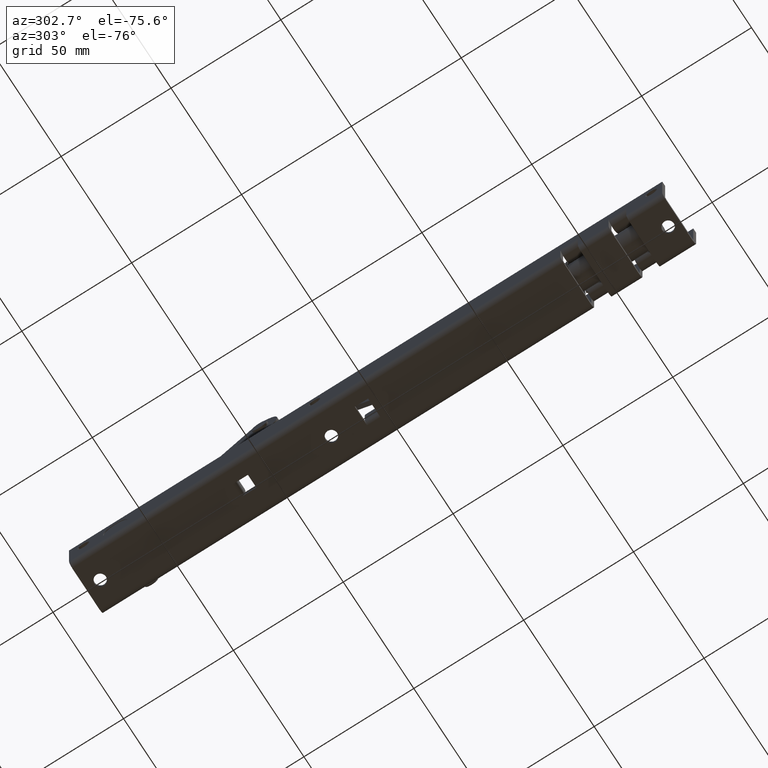
[diagram: clean part render]
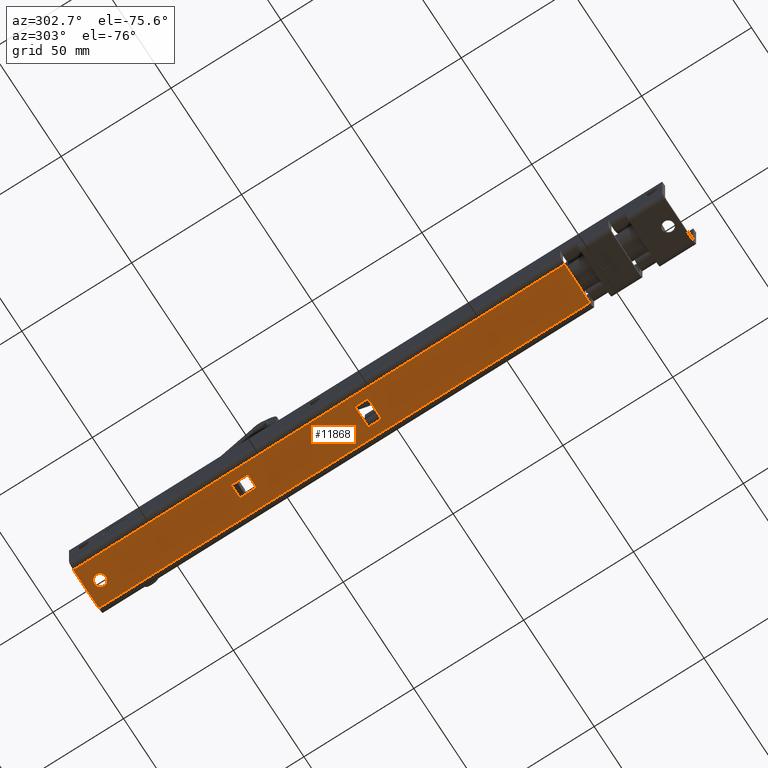
[diagram: same view with one face highlighted and labeled with its STEP entity id]
A machine part, auxiliary view. The second image highlights one B-rep face of the part: STEP entity #11868.
In plain terms, the highlighted planar face has unit normal (0, 0, 1).
Its self-contained STEP definition (entity closure, byte-faithful):
#73 = EDGE_CURVE ( 'NONE', #203, #7313, #15647, .T. ) ;
#203 = VERTEX_POINT ( 'NONE', #7095 ) ;
#212 = VERTEX_POINT ( 'NONE', #7611 ) ;
#945 = CARTESIAN_POINT ( 'NONE',  ( 9.000000000000001776, 135.0000000000000000, -19.99999999999999645 ) ) ;
#1148 = ORIENTED_EDGE ( 'NONE', *, *, #10926, .T. ) ;
#1369 = CARTESIAN_POINT ( 'NONE',  ( 2.000000000000000000, 9.400000000000000355, -19.99999999999999645 ) ) ;
#1674 = VERTEX_POINT ( 'NONE', #9254 ) ;
#1732 = ORIENTED_EDGE ( 'NONE', *, *, #20065, .F. ) ;
#1927 = AXIS2_PLACEMENT_3D ( 'NONE', #13660, #13734, #13590 ) ;
#2409 = VECTOR ( 'NONE', #5333, 1000.000000000000000 ) ;
#2617 = DIRECTION ( 'NONE',  ( -0.000000000000000000, 1.000000000000000000, -0.000000000000000000 ) ) ;
#2687 = CARTESIAN_POINT ( 'NONE',  ( 4.500000000000017764, 135.0000000000000000, -19.99999999999999645 ) ) ;
#2735 = CARTESIAN_POINT ( 'NONE',  ( 1.999999999999999112, 3.400000000000000355, -19.99999999999999645 ) ) ;
#3156 = DIRECTION ( 'NONE',  ( 0.000000000000000000, 0.000000000000000000, -1.000000000000000000 ) ) ;
#3235 = DIRECTION ( 'NONE',  ( -1.000000000000000000, 0.000000000000000000, 0.000000000000000000 ) ) ;
#3312 = LINE ( 'NONE', #14145, #18418 ) ;
#3920 = VECTOR ( 'NONE', #7854, 1000.000000000000000 ) ;
#4111 = LINE ( 'NONE', #9860, #10878 ) ;
#4131 = VECTOR ( 'NONE', #10114, 1000.000000000000000 ) ;
#4567 = VERTEX_POINT ( 'NONE', #945 ) ;
#4871 = VERTEX_POINT ( 'NONE', #11487 ) ;
#4877 = LINE ( 'NONE', #12262, #18102 ) ;
#5333 = DIRECTION ( 'NONE',  ( 1.445602896647339163E-16, 1.000000000000000000, -0.000000000000000000 ) ) ;
#5380 = CARTESIAN_POINT ( 'NONE',  ( -9.000000000000005329, 135.0000000000000000, -19.99999999999999645 ) ) ;
#5398 = ORIENTED_EDGE ( 'NONE', *, *, #73, .F. ) ;
#5687 = EDGE_CURVE ( 'NONE', #11872, #10839, #16625, .T. ) ;
#6009 = DIRECTION ( 'NONE',  ( -1.000000000000000000, 0.000000000000000000, 0.000000000000000000 ) ) ;
#6026 = CIRCLE ( 'NONE', #7589, 2.599999999999997424 ) ;
#6032 = FACE_BOUND ( 'NONE', #15145, .T. ) ;
#6102 = LINE ( 'NONE', #10458, #19285 ) ;
#6178 = EDGE_CURVE ( 'NONE', #10447, #4871, #15539, .T. ) ;
#6254 = AXIS2_PLACEMENT_3D ( 'NONE', #16362, #20293, #21551 ) ;
#6635 = LINE ( 'NONE', #21832, #3920 ) ;
#6787 = EDGE_CURVE ( 'NONE', #212, #14590, #10142, .T. ) ;
#7095 = CARTESIAN_POINT ( 'NONE',  ( -5.000000000000000888, 3.400000000000000355, -19.99999999999999645 ) ) ;
#7117 = ORIENTED_EDGE ( 'NONE', *, *, #7440, .T. ) ;
#7163 = LINE ( 'NONE', #2735, #16322 ) ;
#7234 = EDGE_CURVE ( 'NONE', #4567, #9451, #4877, .T. ) ;
#7313 = VERTEX_POINT ( 'NONE', #16278 ) ;
#7390 = FACE_BOUND ( 'NONE', #14608, .T. ) ;
#7440 = EDGE_CURVE ( 'NONE', #4567, #17064, #6635, .T. ) ;
#7566 = EDGE_LOOP ( 'NONE', ( #9539, #1148, #10245, #8995 ) ) ;
#7589 = AXIS2_PLACEMENT_3D ( 'NONE', #13704, #18904, #19107 ) ;
#7611 = CARTESIAN_POINT ( 'NONE',  ( -2.599999999999997424, 128.5000000000000000, -19.99999999999999645 ) ) ;
#7774 = CARTESIAN_POINT ( 'NONE',  ( 1.500000000000000888, 65.90000000000000568, -19.99999999999999645 ) ) ;
#7854 = DIRECTION ( 'NONE',  ( -0.000000000000000000, -1.000000000000000000, -0.000000000000000000 ) ) ;
#8792 = DIRECTION ( 'NONE',  ( -1.000000000000000000, -0.000000000000000000, -0.000000000000000000 ) ) ;
#8810 = CARTESIAN_POINT ( 'NONE',  ( 4.500000000000000000, 3.400000000000000355, -19.99999999999999645 ) ) ;
#8995 = ORIENTED_EDGE ( 'NONE', *, *, #15749, .F. ) ;
#9005 = CIRCLE ( 'NONE', #9732, 2.600000000000000533 ) ;
#9254 = CARTESIAN_POINT ( 'NONE',  ( -4.500000000000000888, 65.90000000000000568, -19.99999999999999645 ) ) ;
#9284 = VECTOR ( 'NONE', #17851, 1000.000000000000000 ) ;
#9451 = VERTEX_POINT ( 'NONE', #5380 ) ;
#9539 = ORIENTED_EDGE ( 'NONE', *, *, #20265, .F. ) ;
#9599 = DIRECTION ( 'NONE',  ( -1.000000000000000000, 0.000000000000000000, 0.000000000000000000 ) ) ;
#9732 = AXIS2_PLACEMENT_3D ( 'NONE', #21722, #18198, #6009 ) ;
#9760 = VERTEX_POINT ( 'NONE', #16671 ) ;
#9860 = CARTESIAN_POINT ( 'NONE',  ( -4.500000000000000888, 63.39999999999999858, -19.99999999999999645 ) ) ;
#9948 = CARTESIAN_POINT ( 'NONE',  ( 0.000000000000000000, 23.30000000000000782, -19.99999999999999645 ) ) ;
#10114 = DIRECTION ( 'NONE',  ( -0.000000000000000000, -1.000000000000000000, -0.000000000000000000 ) ) ;
#10142 = CIRCLE ( 'NONE', #6254, 2.599999999999997424 ) ;
#10245 = ORIENTED_EDGE ( 'NONE', *, *, #19763, .F. ) ;
#10305 = VERTEX_POINT ( 'NONE', #7774 ) ;
#10325 = VERTEX_POINT ( 'NONE', #17870 ) ;
#10447 = VERTEX_POINT ( 'NONE', #8810 ) ;
#10458 = CARTESIAN_POINT ( 'NONE',  ( 1.499999999999999556, 58.39999999999999147, -19.99999999999999645 ) ) ;
#10608 = FACE_BOUND ( 'NONE', #7566, .T. ) ;
#10839 = VERTEX_POINT ( 'NONE', #21608 ) ;
#10878 = VECTOR ( 'NONE', #2617, 1000.000000000000000 ) ;
#10895 = VERTEX_POINT ( 'NONE', #19567 ) ;
#10926 = EDGE_CURVE ( 'NONE', #10305, #1674, #15743, .T. ) ;
#11251 = VECTOR ( 'NONE', #20301, 1000.000000000000000 ) ;
#11487 = CARTESIAN_POINT ( 'NONE',  ( 4.500000000000000888, 9.400000000000000355, -19.99999999999999645 ) ) ;
#11508 = EDGE_CURVE ( 'NONE', #10839, #11872, #9005, .T. ) ;
#11868 = ADVANCED_FACE ( 'NONE', ( #10608, #7390, #6032, #16811, #14375 ), #11871, .F. ) ;
#11871 = PLANE ( 'NONE',  #1927 ) ;
#11872 = VERTEX_POINT ( 'NONE', #13520 ) ;
#12203 = CARTESIAN_POINT ( 'NONE',  ( -5.000000000000000000, 9.400000000000000355, -19.99999999999999645 ) ) ;
#12262 = CARTESIAN_POINT ( 'NONE',  ( -9.000000000000005329, 135.0000000000000000, -19.99999999999999645 ) ) ;
#12731 = LINE ( 'NONE', #19908, #17322 ) ;
#13520 = CARTESIAN_POINT ( 'NONE',  ( -2.600000000000000533, 23.30000000000000782, -19.99999999999999645 ) ) ;
#13590 = DIRECTION ( 'NONE',  ( 1.000000000000000000, 0.000000000000000000, -0.000000000000000000 ) ) ;
#13660 = CARTESIAN_POINT ( 'NONE',  ( -9.000000000000005329, 135.0000000000000000, -19.99999999999999645 ) ) ;
#13704 = CARTESIAN_POINT ( 'NONE',  ( 0.000000000000000000, 128.5000000000000000, -19.99999999999999645 ) ) ;
#13734 = DIRECTION ( 'NONE',  ( 0.000000000000000000, 0.000000000000000000, 1.000000000000000000 ) ) ;
#14145 = CARTESIAN_POINT ( 'NONE',  ( 1.500000000000000444, 63.39999999999999858, -19.99999999999999645 ) ) ;
#14225 = ORIENTED_EDGE ( 'NONE', *, *, #14521, .F. ) ;
#14375 = FACE_OUTER_BOUND ( 'NONE', #18992, .T. ) ;
#14521 = EDGE_CURVE ( 'NONE', #7313, #4871, #19047, .T. ) ;
#14590 = VERTEX_POINT ( 'NONE', #15175 ) ;
#14608 = EDGE_LOOP ( 'NONE', ( #21128, #21752, #14225, #5398 ) ) ;
#15047 = ORIENTED_EDGE ( 'NONE', *, *, #6787, .F. ) ;
#15145 = EDGE_LOOP ( 'NONE', ( #15047, #1732 ) ) ;
#15175 = CARTESIAN_POINT ( 'NONE',  ( 2.599999999999997424, 128.5000000000000000, -19.99999999999999645 ) ) ;
#15263 = VECTOR ( 'NONE', #17579, 1000.000000000000000 ) ;
#15539 = LINE ( 'NONE', #2687, #15263 ) ;
#15647 = LINE ( 'NONE', #12203, #2409 ) ;
#15743 = LINE ( 'NONE', #21382, #9284 ) ;
#15749 = EDGE_CURVE ( 'NONE', #10895, #9760, #6102, .T. ) ;
#15800 = DIRECTION ( 'NONE',  ( -1.734723475976805615E-16, -1.000000000000000000, 0.000000000000000000 ) ) ;
#16217 = EDGE_LOOP ( 'NONE', ( #17653, #16376 ) ) ;
#16278 = CARTESIAN_POINT ( 'NONE',  ( -5.000000000000000000, 9.399999999999991473, -19.99999999999999645 ) ) ;
#16322 = VECTOR ( 'NONE', #9599, 1000.000000000000000 ) ;
#16362 = CARTESIAN_POINT ( 'NONE',  ( 0.000000000000000000, 128.5000000000000000, -19.99999999999999645 ) ) ;
#16376 = ORIENTED_EDGE ( 'NONE', *, *, #11508, .F. ) ;
#16543 = EDGE_CURVE ( 'NONE', #10447, #203, #7163, .T. ) ;
#16625 = CIRCLE ( 'NONE', #20658, 2.600000000000000533 ) ;
#16671 = CARTESIAN_POINT ( 'NONE',  ( -4.500000000000000888, 58.39999999999999147, -19.99999999999999645 ) ) ;
#16811 = FACE_BOUND ( 'NONE', #16217, .T. ) ;
#17064 = VERTEX_POINT ( 'NONE', #19073 ) ;
#17279 = ORIENTED_EDGE ( 'NONE', *, *, #19237, .F. ) ;
#17322 = VECTOR ( 'NONE', #21719, 1000.000000000000000 ) ;
#17358 = LINE ( 'NONE', #20513, #4131 ) ;
#17579 = DIRECTION ( 'NONE',  ( 1.445602896647339163E-16, 1.000000000000000000, -0.000000000000000000 ) ) ;
#17653 = ORIENTED_EDGE ( 'NONE', *, *, #5687, .F. ) ;
#17758 = DIRECTION ( 'NONE',  ( -1.000000000000000000, 0.000000000000000000, 0.000000000000000000 ) ) ;
#17851 = DIRECTION ( 'NONE',  ( -1.000000000000000000, -0.000000000000000000, -0.000000000000000000 ) ) ;
#17870 = CARTESIAN_POINT ( 'NONE',  ( -9.000000000000000000, -88.59999999999999432, -19.99999999999999645 ) ) ;
#18102 = VECTOR ( 'NONE', #8792, 1000.000000000000000 ) ;
#18112 = ORIENTED_EDGE ( 'NONE', *, *, #7234, .F. ) ;
#18198 = DIRECTION ( 'NONE',  ( 0.000000000000000000, 0.000000000000000000, -1.000000000000000000 ) ) ;
#18418 = VECTOR ( 'NONE', #15800, 1000.000000000000000 ) ;
#18904 = DIRECTION ( 'NONE',  ( 0.000000000000000000, 0.000000000000000000, -1.000000000000000000 ) ) ;
#18992 = EDGE_LOOP ( 'NONE', ( #7117, #21899, #17279, #18112 ) ) ;
#19047 = LINE ( 'NONE', #1369, #11251 ) ;
#19073 = CARTESIAN_POINT ( 'NONE',  ( 8.999999999999998224, -88.59999999999999432, -19.99999999999999645 ) ) ;
#19107 = DIRECTION ( 'NONE',  ( -1.000000000000000000, 0.000000000000000000, 0.000000000000000000 ) ) ;
#19237 = EDGE_CURVE ( 'NONE', #9451, #10325, #17358, .T. ) ;
#19285 = VECTOR ( 'NONE', #17758, 1000.000000000000000 ) ;
#19567 = CARTESIAN_POINT ( 'NONE',  ( 1.499999999999999556, 58.39999999999999147, -19.99999999999999645 ) ) ;
#19763 = EDGE_CURVE ( 'NONE', #9760, #1674, #4111, .T. ) ;
#19908 = CARTESIAN_POINT ( 'NONE',  ( 11.99999999999999822, -88.59999999999999432, -19.99999999999999645 ) ) ;
#20065 = EDGE_CURVE ( 'NONE', #14590, #212, #6026, .T. ) ;
#20265 = EDGE_CURVE ( 'NONE', #10305, #10895, #3312, .T. ) ;
#20293 = DIRECTION ( 'NONE',  ( 0.000000000000000000, 0.000000000000000000, -1.000000000000000000 ) ) ;
#20301 = DIRECTION ( 'NONE',  ( 1.000000000000000000, -0.000000000000000000, -0.000000000000000000 ) ) ;
#20513 = CARTESIAN_POINT ( 'NONE',  ( -9.000000000000005329, 135.0000000000000000, -19.99999999999999645 ) ) ;
#20598 = EDGE_CURVE ( 'NONE', #10325, #17064, #12731, .T. ) ;
#20658 = AXIS2_PLACEMENT_3D ( 'NONE', #9948, #3156, #3235 ) ;
#21128 = ORIENTED_EDGE ( 'NONE', *, *, #16543, .F. ) ;
#21382 = CARTESIAN_POINT ( 'NONE',  ( -9.000000000000005329, 65.90000000000000568, -19.99999999999999645 ) ) ;
#21551 = DIRECTION ( 'NONE',  ( -1.000000000000000000, 0.000000000000000000, 0.000000000000000000 ) ) ;
#21608 = CARTESIAN_POINT ( 'NONE',  ( 2.600000000000000533, 23.30000000000000782, -19.99999999999999645 ) ) ;
#21719 = DIRECTION ( 'NONE',  ( 1.000000000000000000, -0.000000000000000000, -0.000000000000000000 ) ) ;
#21722 = CARTESIAN_POINT ( 'NONE',  ( 0.000000000000000000, 23.30000000000000782, -19.99999999999999645 ) ) ;
#21752 = ORIENTED_EDGE ( 'NONE', *, *, #6178, .T. ) ;
#21832 = CARTESIAN_POINT ( 'NONE',  ( 9.000000000000001776, 135.0000000000000000, -19.99999999999999645 ) ) ;
#21899 = ORIENTED_EDGE ( 'NONE', *, *, #20598, .F. ) ;